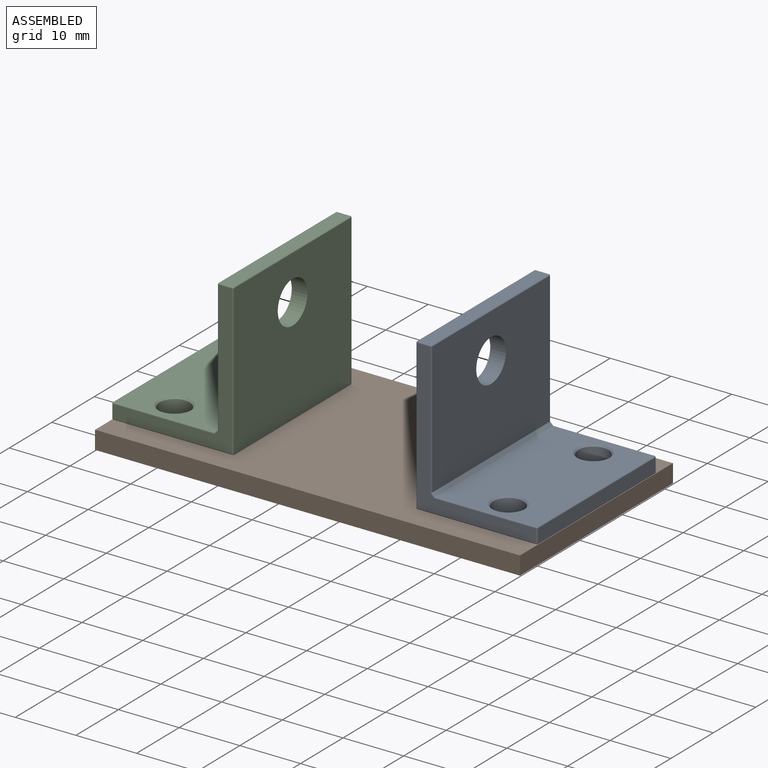
[diagram: assembled view]
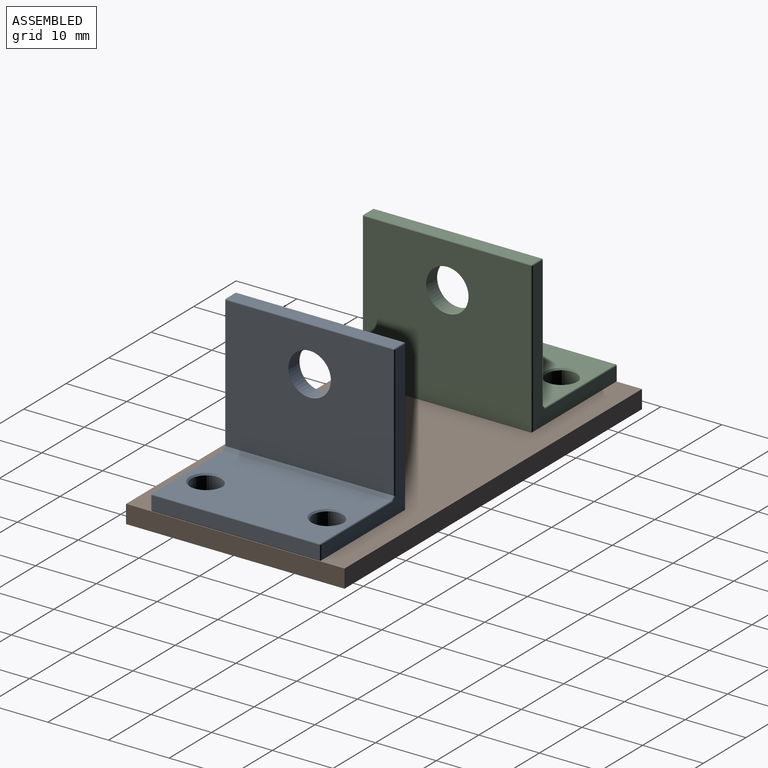
[diagram: assembled view, second angle]
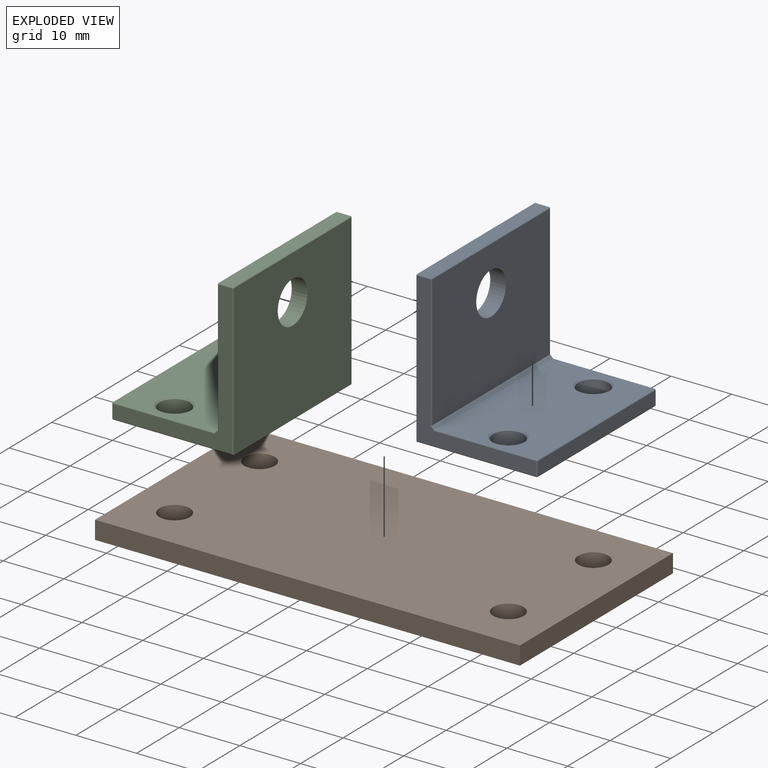
[diagram: exploded view]
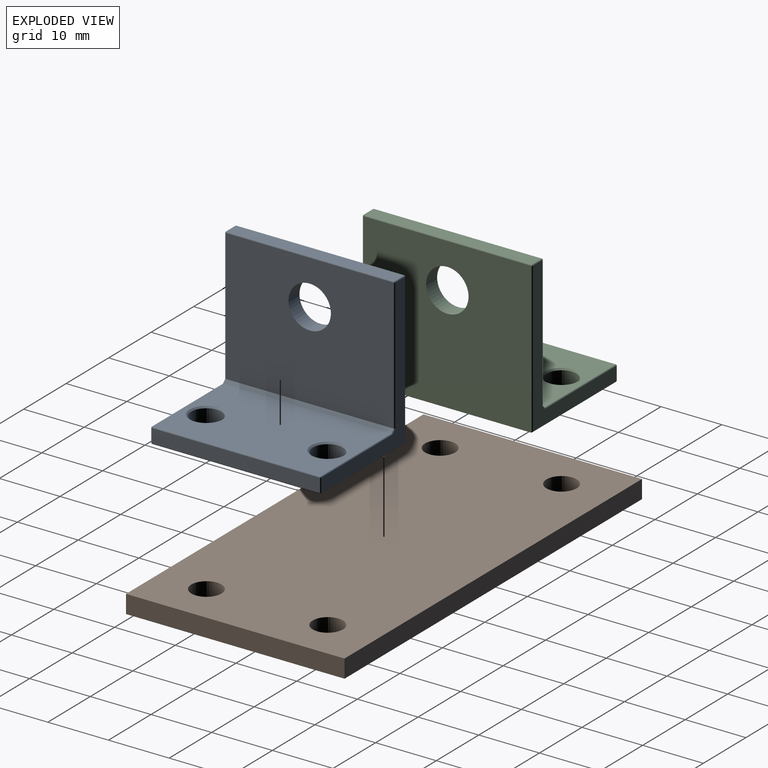
[diagram: exploded view, second angle]
ASSEMBLY  parts=3 mates=4
PART A: 40 faces, bbox 20x28x25 mm
  f0: plane 27.6x24.8mm, normal (-1,0,0), area 646mm2, adj f1,f14,f22,f23,f39
  f1: plane 27.6x19.8mm, normal (0,0,-1), area 507.2mm2, adj f0,f8,f10,f13,f20,f21
  f2: plane 27.6x2.2mm, normal (1,0,0), area 60.7mm2, adj f19,f20,f30,f31
  f3: plane 27.6x16.7mm, normal (0,0,1), area 413.4mm2, adj f9,f11,f12,f18,f30,f36
  f4: plane 27.6x21.7mm, normal (1,0,0), area 560.4mm2, adj f12,f25,f33,f37,f39
  f5: plane 27.6x2.2mm, normal (0,0,1), area 60.7mm2, adj f23,f24,f32,f33
  f6: plane 24.6x19.6mm, normal (0,-1,0), area 92.6mm2, adj f21,f22,f31,f32,f36,f37,f38
  f7: plane 24.6x19.6mm, normal (0,1,0), area 92.6mm2, adj f13,f14,f17,f18,f19,f24,f25
  f8: cylinder r=2.5mm len=5mm, axis (0,0,1), area 36.9mm2, adj f1,f9
  f9: cone r=2.5mm half-angle=45deg, axis (0,0,1), area 5.8mm2, adj f3,f8
  f10: cylinder r=2.5mm len=5mm, axis (0,0,1), area 36.9mm2, adj f1,f11
  f11: cone r=2.5mm half-angle=45deg, axis (0,0,1), area 5.8mm2, adj f3,f10
  f12: plane 27.6x0.5mm, normal (0.71,0,0.71), area 19.5mm2, adj f3,f4,f17,f38
  f13: cylinder r=0.2mm len=19.8mm, axis (1,0,0), area 6.2mm2, adj f1,f7,f14,f15
  f14: cylinder r=0.2mm len=24.8mm, axis (0,0,-1), area 7.8mm2, adj f0,f7,f13,f16
  f15: sphere r=0.2mm, area 0.1mm2, adj f13,f19,f20
  f16: sphere r=0.2mm, area 0.1mm2, adj f14,f23,f24
  f17: cylinder r=0.2mm len=0.76mm, axis (0.71,0,-0.71), area 0.2mm2, adj f7,f12,f18,f25
  f18: cylinder r=0.2mm len=16.78mm, axis (-1,0,0), area 5.3mm2, adj f3,f7,f17,f26
  f19: cylinder r=0.2mm len=2.2mm, axis (0,0,1), area 0.7mm2, adj f2,f7,f15,f26
  f20: cylinder r=0.2mm len=27.6mm, axis (0,1,0), area 8.7mm2, adj f1,f2,f15,f27
  f21: cylinder r=0.2mm len=19.8mm, axis (-1,0,0), area 6.2mm2, adj f1,f6,f22,f27
  f22: cylinder r=0.2mm len=24.8mm, axis (0,0,1), area 7.8mm2, adj f0,f6,f21,f28
  f23: cylinder r=0.2mm len=27.6mm, axis (0,1,0), area 8.7mm2, adj f0,f5,f16,f28
  f24: cylinder r=0.2mm len=2.2mm, axis (-1,0,0), area 0.7mm2, adj f5,f7,f16,f29
  f25: cylinder r=0.2mm len=21.78mm, axis (0,0,1), area 6.8mm2, adj f4,f7,f17,f29
  f26: sphere r=0.2mm, area 0.1mm2, adj f18,f19,f30
  f27: sphere r=0.2mm, area 0.1mm2, adj f20,f21,f31
  f28: sphere r=0.2mm, area 0.1mm2, adj f22,f23,f32
  f29: sphere r=0.2mm, area 0.1mm2, adj f24,f25,f33
  f30: cylinder r=0.2mm len=27.6mm, axis (0,-1,0), area 8.7mm2, adj f2,f3,f26,f34
  f31: cylinder r=0.2mm len=2.2mm, axis (0,0,-1), area 0.7mm2, adj f2,f6,f27,f34
  f32: cylinder r=0.2mm len=2.2mm, axis (1,0,0), area 0.7mm2, adj f5,f6,f28,f35
  f33: cylinder r=0.2mm len=27.6mm, axis (0,-1,0), area 8.7mm2, adj f4,f5,f29,f35
  f34: sphere r=0.2mm, area 0.1mm2, adj f30,f31,f36
  f35: sphere r=0.2mm, area 0.1mm2, adj f32,f33,f37
  f36: cylinder r=0.2mm len=16.78mm, axis (1,0,0), area 5.3mm2, adj f3,f6,f34,f38
  f37: cylinder r=0.2mm len=21.78mm, axis (0,0,-1), area 6.8mm2, adj f4,f6,f35,f38
  f38: cylinder r=0.2mm len=0.76mm, axis (0.71,0,-0.71), area 0.2mm2, adj f6,f12,f36,f37
  f39: cylinder r=3.5mm len=7mm, axis (1,0,0), area 57.2mm2, adj f0,f4
PART B: 10 faces, bbox 70x36x3 mm
  f0: plane 70x3mm, normal (0,1,0), area 210mm2, adj f1,f7,f8,f9
  f1: plane 36x3mm, normal (-1,0,0), area 108mm2, adj f0,f2,f8,f9
  f2: plane 70x3mm, normal (0,-1,0), area 210mm2, adj f1,f7,f8,f9
  f3: cylinder r=2.5mm len=5mm, axis (0,0,1), area 47.1mm2, adj f8,f9
  f4: cylinder r=2.5mm len=5mm, axis (0,0,1), area 47.1mm2, adj f8,f9
  f5: cylinder r=2.5mm len=5mm, axis (0,0,1), area 47.1mm2, adj f8,f9
  f6: cylinder r=2.5mm len=5mm, axis (0,0,1), area 47.1mm2, adj f8,f9
  f7: plane 36x3mm, normal (1,0,0), area 108mm2, adj f0,f2,f8,f9
  f8: plane 70x36mm, normal (0,0,-1), area 2441.5mm2, adj f0,f1,f2,f3,f4,f5,f6,f7
  f9: plane 70x36mm, normal (0,0,1), area 2441.5mm2, adj f0,f1,f2,f3,f4,f5,f6,f7
PART C: same geometry as A
PLACE A rot(axis=(0,0,1),0deg) t=(17.87,-1.53,1.77)mm
PLACE B rot(axis=(0,0,1),0deg) t=(2.87,-1.61,1.77)mm fixed
PLACE C rot(axis=(0,0,-1),180deg) t=(-12.13,-1.68,1.77)mm
MATE revolute A.f10 <-> B.f4  axis (0,0,-1) through (30.37,8.39,1.77)mm
MATE revolute A.f8 <-> B.f5  axis (0,0,1) through (30.37,-11.61,1.77)mm
MATE revolute C.f10 <-> B.f6  axis (0,0,1) through (-24.63,-11.61,1.77)mm
MATE cylindrical C.f8 <-> B.f3  axis (0,0,-1) through (-24.63,8.39,1.77)mm
